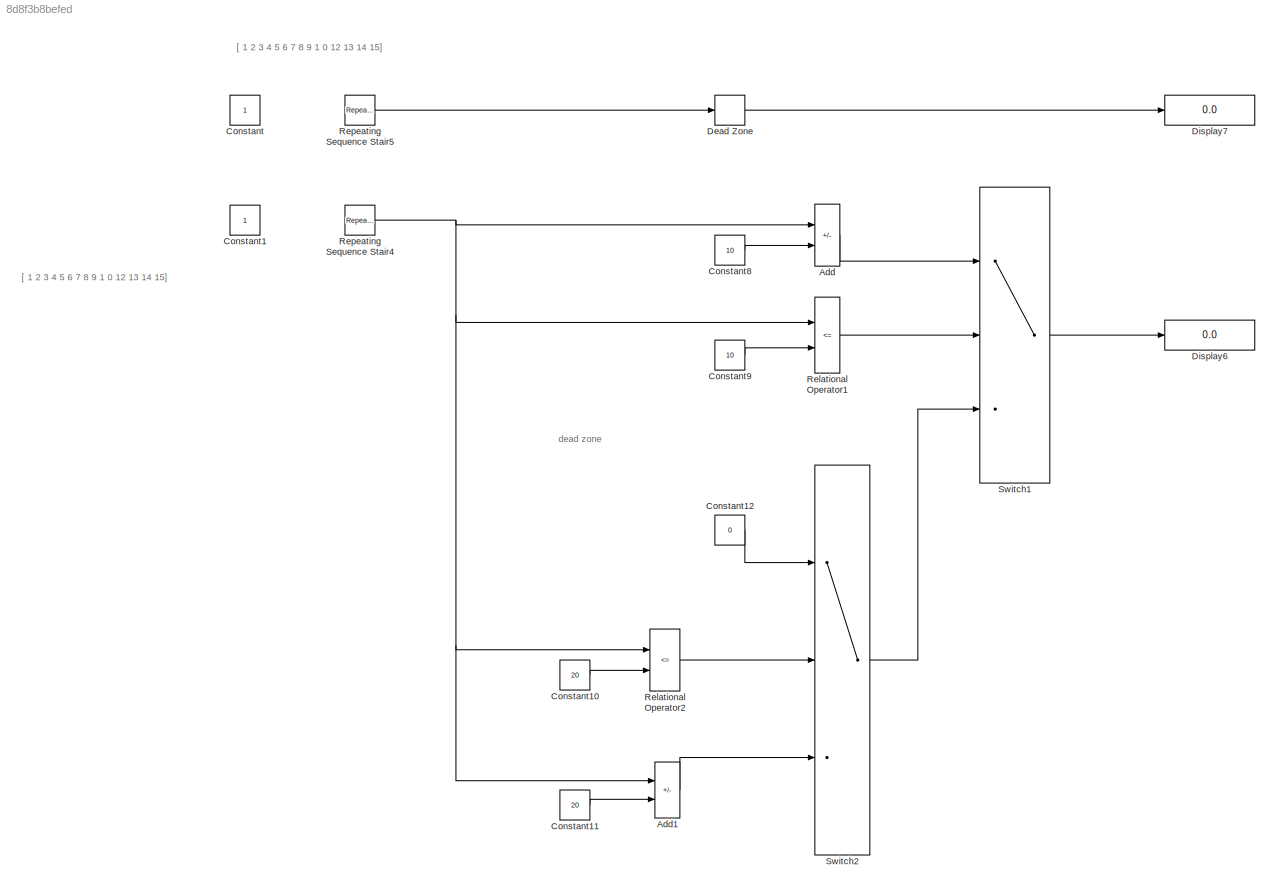
MODEL slx_8d8f3b8befed
KIND model
CONFIG AbsTol = auto
CONFIG EnableMultiTasking = off
CONFIG FixedStep = auto
CONFIG MaxStep = auto
CONFIG MinStep = auto
CONFIG RelTol = 1e-3
CONFIG SampleTimeConstraint = Unconstrained
CONFIG Solver = VariableStepAuto
CONFIG SolverName = VariableStepAuto
CONFIG StartTime = 0.0
CONFIG StopTime = 10.0
BLOCK [Sum] Add
  IconShape = rectangular
  Inputs = +-
  Ports = [2, 1]
BLOCK [Sum] Add1
  IconShape = rectangular
  Inputs = +-
  Ports = [2, 1]
BLOCK [Constant] Constant
BLOCK [Constant] Constant1
BLOCK [Constant] Constant10
  Value = 20
BLOCK [Constant] Constant11
  Value = 20
BLOCK [Constant] Constant12
  Value = 0
BLOCK [Constant] Constant8
  Value = 10
BLOCK [Constant] Constant9
  Value = 10
BLOCK [DeadZone] Dead Zone
  LowerValue = 10
  UpperValue = 20
BLOCK [Display] Display6
  Decimation = 1
  Ports = [1]
BLOCK [Display] Display7
  Decimation = 1
  Ports = [1]
BLOCK [RelationalOperator] Relational Operator1
  InputSameDT = off
  Operator = <=
  OutDataTypeStr = boolean
  Ports = [2, 1]
  RndMeth = Simplest
BLOCK [RelationalOperator] Relational Operator2
  InputSameDT = off
  Operator = <=
  OutDataTypeStr = boolean
  Ports = [2, 1]
  RndMeth = Simplest
BLOCK [Reference] Repeating Sequence Stair4  REF=simulink/Sources/Repeating
Sequence
Stair
  Ports = [0, 1]
  SourceBlock = simulink/Sources/Repeating\nSequence\nStair
  SourceProductBaseCode = SL
  SourceType = Repeating Sequence Stair
BLOCK [Reference] Repeating Sequence Stair5  REF=simulink/Sources/Repeating
Sequence
Stair
  Ports = [0, 1]
  SourceBlock = simulink/Sources/Repeating\nSequence\nStair
  SourceProductBaseCode = SL
  SourceType = Repeating Sequence Stair
BLOCK [Switch] Switch1
  Criteria = u2 > Threshold
  InputSameDT = off
  SaturateOnIntegerOverflow = off
BLOCK [Switch] Switch2
  Criteria = u2 > Threshold
  InputSameDT = off
  SaturateOnIntegerOverflow = off
ANNOTATION (root): [ 1 2 3 4 5 6 7 8 9 1 0 12 13 14 15]
ANNOTATION (root): dead zone
LINE Add1:1 -> Switch2:3
LINE Add:1 -> Switch1:1
LINE Constant10:1 -> Relational Operator2:2
LINE Constant11:1 -> Add1:2
LINE Constant12:1 -> Switch2:1
LINE Constant8:1 -> Add:2
LINE Constant9:1 -> Relational Operator1:2
LINE Dead Zone:1 -> Display7:1
LINE Relational Operator1:1 -> Switch1:2
LINE Relational Operator2:1 -> Switch2:2
NET Repeating Sequence Stair4:1 -> Add1:1, Add:1, Relational Operator1:1, Relational Operator2:1
LINE Repeating Sequence Stair5:1 -> Dead Zone:1
LINE Switch1:1 -> Display6:1
LINE Switch2:1 -> Switch1:3
note: NET lines group one-source signal fan-out (src -> all destinations, sorted); 1:1 wires keep LINE
